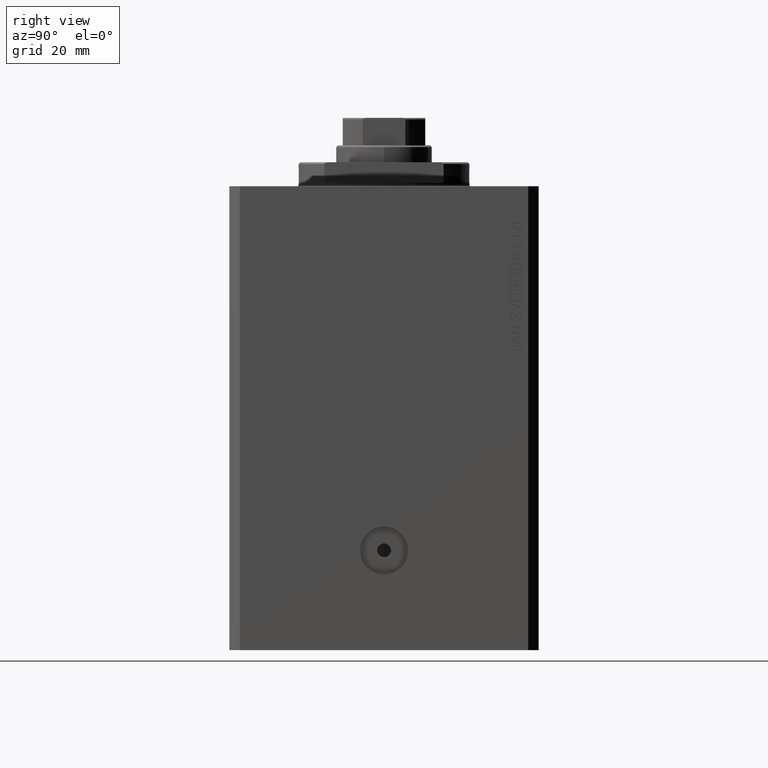
[diagram: clean part render]
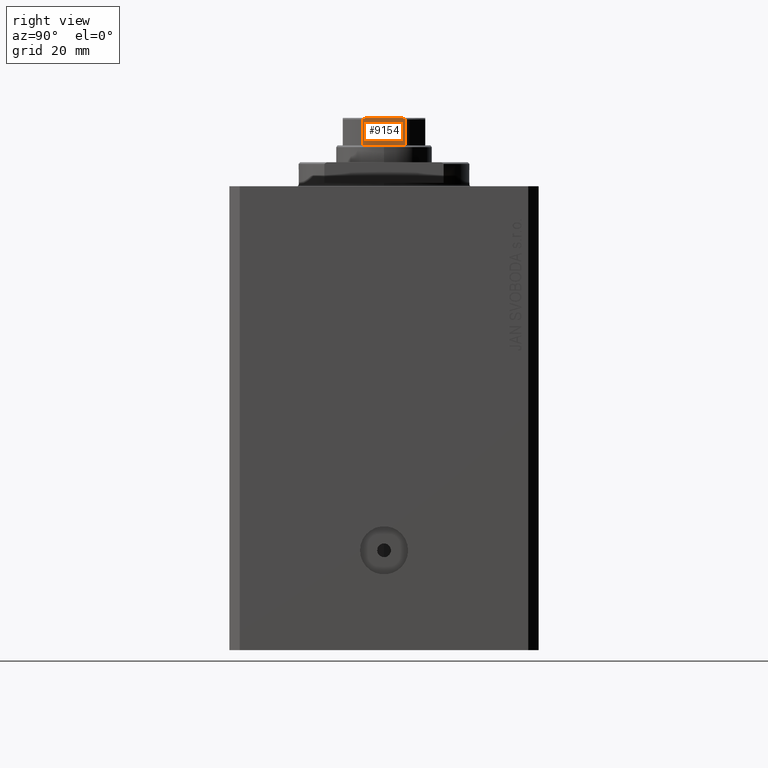
[diagram: same view with one face highlighted and labeled with its STEP entity id]
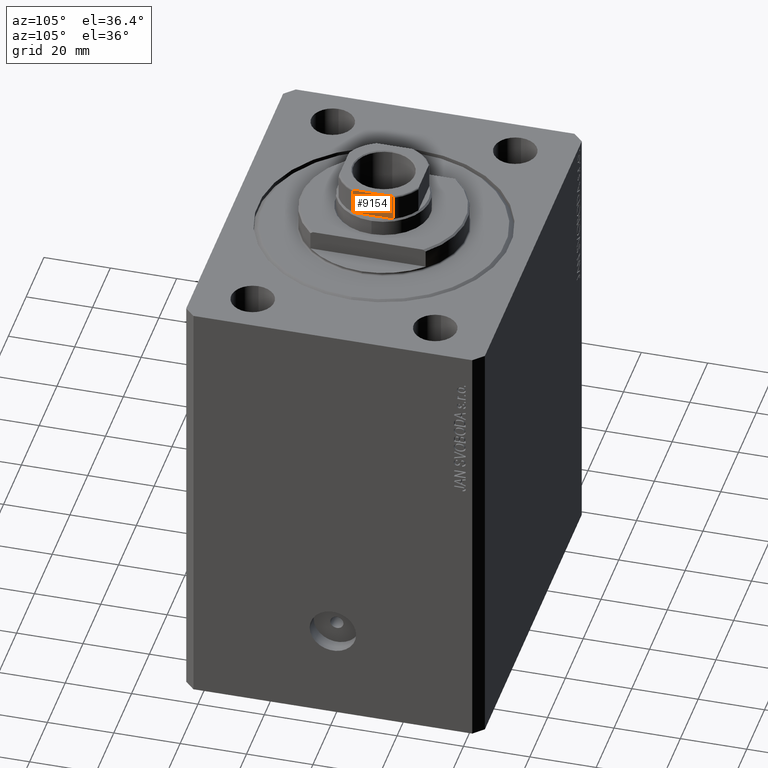
[diagram: same view with one face highlighted and labeled with its STEP entity id]
A machine part, right view. The second image highlights one B-rep face of the part: STEP entity #9154.
A second angle (auxiliary view) of the same face is appended — the face is thin or edge-on in the first view.
In plain terms, the highlighted planar face has unit normal (-1, -0, 0).
Its self-contained STEP definition (entity closure, byte-faithful):
#784 = CARTESIAN_POINT ( 'NONE',  ( 12.00000000000000533, 5.458892612163320557, 136.9796099716497793 ) ) ;
#1159 = CARTESIAN_POINT ( 'NONE',  ( 12.00000000000000355, -5.459934723612532181, 136.9794964115812377 ) ) ;
#1383 = CARTESIAN_POINT ( 'NONE',  ( 12.00000000000000533, -5.903192932991086828, 136.8415152347680248 ) ) ;
#1626 = DIRECTION ( 'NONE',  ( -1.000000000000000000, -1.445602896647339163E-16, 0.000000000000000000 ) ) ;
#2068 = CARTESIAN_POINT ( 'NONE',  ( 12.00000000000000000, 6.184658438426490434, 129.0000000000000000 ) ) ;
#3221 = VERTEX_POINT ( 'NONE', #42056 ) ;
#4757 = CARTESIAN_POINT ( 'NONE',  ( 12.00000000000000533, -5.793822051191352962, 136.8841735219943416 ) ) ;
#4771 = DIRECTION ( 'NONE',  ( 1.445602896647339163E-16, -1.000000000000000000, 0.000000000000000000 ) ) ;
#5224 = CARTESIAN_POINT ( 'NONE',  ( 12.00000000000000178, -6.091027642353950888, 136.7080088155617261 ) ) ;
#7033 = ORIENTED_EDGE ( 'NONE', *, *, #38983, .T. ) ;
#7145 = VERTEX_POINT ( 'NONE', #24010 ) ;
#7712 = VERTEX_POINT ( 'NONE', #42254 ) ;
#8329 = EDGE_LOOP ( 'NONE', ( #22908, #41419, #8473, #33638, #7033, #14150 ) ) ;
#8473 = ORIENTED_EDGE ( 'NONE', *, *, #16741, .F. ) ;
#9034 = VECTOR ( 'NONE', #34437, 1000.000000000000000 ) ;
#9154 = ADVANCED_FACE ( 'NONE', ( #22614 ), #36360, .F. ) ;
#11158 = CARTESIAN_POINT ( 'NONE',  ( 12.00000000000000355, 5.792513940493504876, 136.8846382036010141 ) ) ;
#11617 = CARTESIAN_POINT ( 'NONE',  ( 12.00000000000000000, 6.184658438426490434, 136.5000000000000000 ) ) ;
#11764 = CARTESIAN_POINT ( 'NONE',  ( 12.00000000000000000, -6.184658438426490434, 136.5000000000000000 ) ) ;
#11936 = DIRECTION ( 'NONE',  ( -1.445602896647339163E-16, 1.000000000000000000, -0.000000000000000000 ) ) ;
#12307 = CARTESIAN_POINT ( 'NONE',  ( 12.00000000000000000, -6.184658438426490434, 129.0000000000000000 ) ) ;
#12998 = CARTESIAN_POINT ( 'NONE',  ( 12.00000000000000000, -6.184658438426490434, -0.001000000000001000089 ) ) ;
#14150 = ORIENTED_EDGE ( 'NONE', *, *, #26384, .T. ) ;
#14546 = CARTESIAN_POINT ( 'NONE',  ( 12.00000000000000355, 5.230795946637840643, 137.0000000000000000 ) ) ;
#15147 = CARTESIAN_POINT ( 'NONE',  ( 12.00000000000000888, -6.160856115322530968, 136.6149782197479396 ) ) ;
#16741 = EDGE_CURVE ( 'NONE', #30308, #19329, #39853, .T. ) ;
#18379 = VERTEX_POINT ( 'NONE', #2068 ) ;
#19329 = VERTEX_POINT ( 'NONE', #23226 ) ;
#21775 = CARTESIAN_POINT ( 'NONE',  ( 12.00000000000000178, 4.999999999999994671, 137.0000000000000000 ) ) ;
#21910 = DIRECTION ( 'NONE',  ( -1.445602896647339163E-16, 1.000000000000000000, -0.000000000000000000 ) ) ;
#22506 = DIRECTION ( 'NONE',  ( -0.000000000000000000, -0.000000000000000000, 1.000000000000000000 ) ) ;
#22583 = EDGE_CURVE ( 'NONE', #3221, #19329, #24469, .T. ) ;
#22614 = FACE_OUTER_BOUND ( 'NONE', #8329, .T. ) ;
#22908 = ORIENTED_EDGE ( 'NONE', *, *, #35594, .F. ) ;
#23226 = CARTESIAN_POINT ( 'NONE',  ( 12.00000000000000000, -6.184658438426490434, 136.5000000000000000 ) ) ;
#24010 = CARTESIAN_POINT ( 'NONE',  ( 12.00000000000000000, 6.184658438426490434, 136.5000000000000000 ) ) ;
#24469 = B_SPLINE_CURVE_WITH_KNOTS ( 'NONE', 3,
 ( #36124, #32954, #1159, #4757, #1383, #25524, #5224, #15147, #32731, #11764 ),
 .UNSPECIFIED., .F., .F.,
 ( 4, 2, 2, 2, 4 ),
 ( 8.673617379884035472E-19, 0.0006877128613558392391, 0.001031569292033768454, 0.001203497507372732140, 0.001375425722711695609 ),
 .UNSPECIFIED. ) ;
#25524 = CARTESIAN_POINT ( 'NONE',  ( 12.00000000000000178, -6.045866546018578980, 136.7461068616299542 ) ) ;
#25598 = CARTESIAN_POINT ( 'NONE',  ( 11.99999999999999822, 6.091003570118822097, 136.7080862465981568 ) ) ;
#25984 = CARTESIAN_POINT ( 'NONE',  ( 12.00000000000000000, 12.00000000000000000, 137.0000000000000000 ) ) ;
#26384 = EDGE_CURVE ( 'NONE', #7145, #7712, #31710, .T. ) ;
#28850 = LINE ( 'NONE', #29077, #31975 ) ;
#29077 = CARTESIAN_POINT ( 'NONE',  ( 12.00000000000000000, 12.00000000000000000, 129.0000000000000000 ) ) ;
#30308 = VERTEX_POINT ( 'NONE', #12307 ) ;
#31710 = B_SPLINE_CURVE_WITH_KNOTS ( 'NONE', 3,
 ( #11617, #38442, #35513, #25598, #39129, #35063, #11158, #784, #14546, #21775 ),
 .UNSPECIFIED., .F., .F.,
 ( 4, 2, 2, 2, 4 ),
 ( 0.000000000000000000, 0.0001740189231935563099, 0.0003480378463871126198, 0.0006960756927741791611, 0.001392151385548337939 ),
 .UNSPECIFIED. ) ;
#31975 = VECTOR ( 'NONE', #11936, 1000.000000000000000 ) ;
#32731 = CARTESIAN_POINT ( 'NONE',  ( 12.00000000000000711, -6.184658438426490434, 136.5589821493407783 ) ) ;
#32954 = CARTESIAN_POINT ( 'NONE',  ( 12.00000000000000355, -5.230809753656809669, 137.0000000000000000 ) ) ;
#33041 = AXIS2_PLACEMENT_3D ( 'NONE', #25984, #1626, #4771 ) ;
#33638 = ORIENTED_EDGE ( 'NONE', *, *, #35735, .T. ) ;
#34122 = VECTOR ( 'NONE', #21910, 1000.000000000000000 ) ;
#34437 = DIRECTION ( 'NONE',  ( -0.000000000000000000, -0.000000000000000000, 1.000000000000000000 ) ) ;
#35063 = CARTESIAN_POINT ( 'NONE',  ( 12.00000000000000355, 5.900889097622410873, 136.8429613869932950 ) ) ;
#35513 = CARTESIAN_POINT ( 'NONE',  ( 12.00000000000000000, 6.161088279078725805, 136.6146234191510018 ) ) ;
#35594 = EDGE_CURVE ( 'NONE', #3221, #7712, #42868, .T. ) ;
#35735 = EDGE_CURVE ( 'NONE', #30308, #18379, #28850, .T. ) ;
#36124 = CARTESIAN_POINT ( 'NONE',  ( 12.00000000000000178, -4.999999999999990230, 137.0000000000000000 ) ) ;
#36360 = PLANE ( 'NONE',  #33041 ) ;
#38442 = CARTESIAN_POINT ( 'NONE',  ( 12.00000000000000355, 6.184658438426492211, 136.5589344020394549 ) ) ;
#38983 = EDGE_CURVE ( 'NONE', #18379, #7145, #41207, .T. ) ;
#39129 = CARTESIAN_POINT ( 'NONE',  ( 12.00000000000000178, 6.046414714222230202, 136.7457872300292934 ) ) ;
#39853 = LINE ( 'NONE', #12998, #43943 ) ;
#41207 = LINE ( 'NONE', #41641, #9034 ) ;
#41419 = ORIENTED_EDGE ( 'NONE', *, *, #22583, .T. ) ;
#41641 = CARTESIAN_POINT ( 'NONE',  ( 12.00000000000000000, 6.184658438426490434, -0.001000000000001000089 ) ) ;
#42056 = CARTESIAN_POINT ( 'NONE',  ( 12.00000000000000178, -4.999999999999990230, 137.0000000000000000 ) ) ;
#42254 = CARTESIAN_POINT ( 'NONE',  ( 12.00000000000000178, 4.999999999999994671, 137.0000000000000000 ) ) ;
#42645 = CARTESIAN_POINT ( 'NONE',  ( 12.00000000000000000, 12.00000000000000000, 137.0000000000000000 ) ) ;
#42868 = LINE ( 'NONE', #42645, #34122 ) ;
#43943 = VECTOR ( 'NONE', #22506, 1000.000000000000000 ) ;